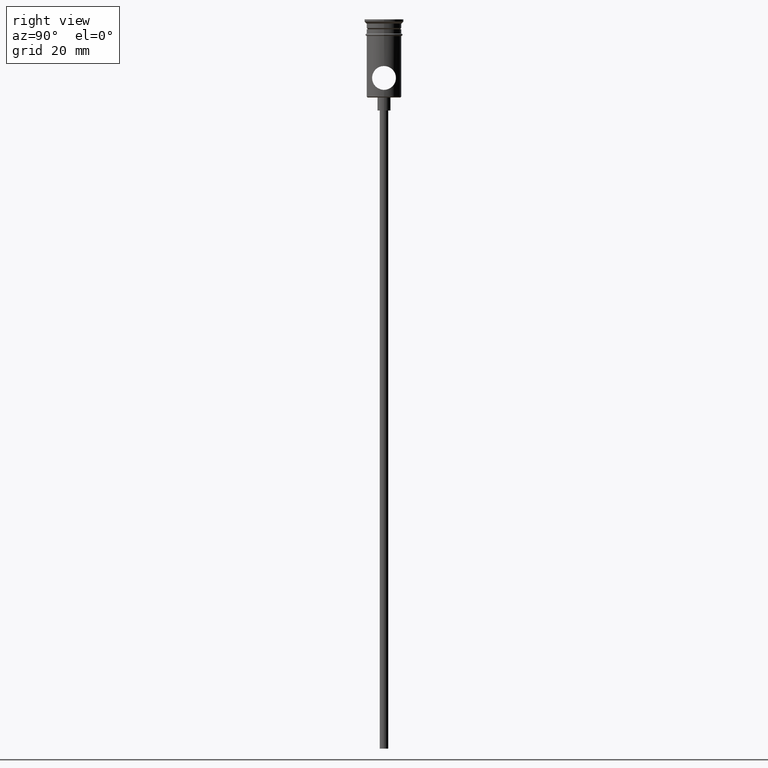
[diagram: clean part render]
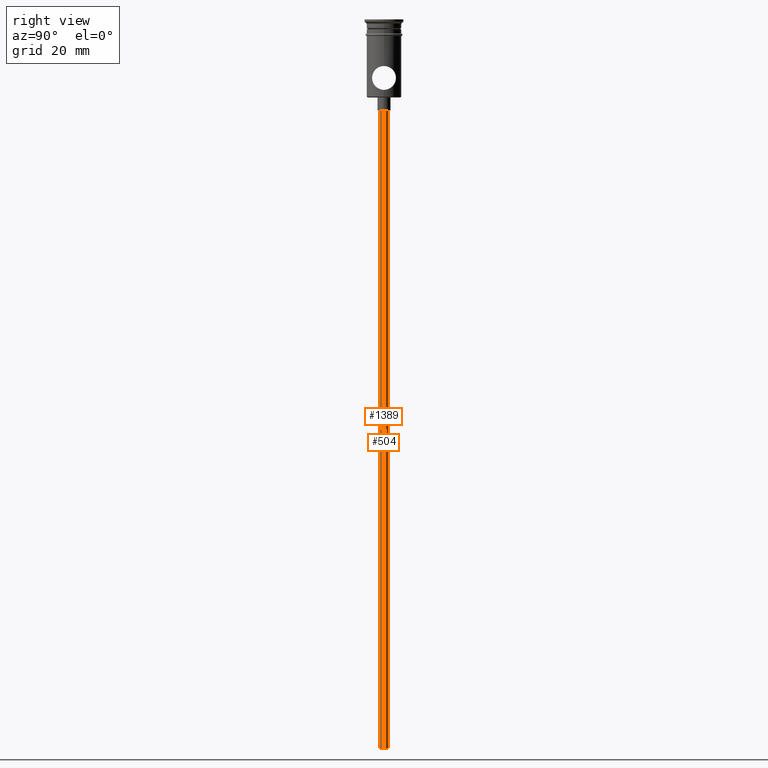
[diagram: same view with one multi-face feature highlighted, each face labeled with its STEP entity id]
A machine part, right view. The highlighted faces form ONE feature: a constant-radius fillet chain: 2 tangent blend faces with common blend radius 1 mm. The faces share edges in the B-rep.
Their STEP definitions:
[1] entity #1389 (Cylinder):
#53 = DIRECTION ( 'NONE',  ( -0.000000000000000000, -0.000000000000000000, 1.000000000000000000 ) ) ;
#72 = DIRECTION ( 'NONE',  ( 0.000000000000000000, 0.000000000000000000, -1.000000000000000000 ) ) ;
#74 = VECTOR ( 'NONE', #53, 1000.000000000000000 ) ;
#83 = ORIENTED_EDGE ( 'NONE', *, *, #494, .F. ) ;
#87 = CARTESIAN_POINT ( 'NONE',  ( 0.9999999999999997780, 0.000000000000000000, -167.9999999999999716 ) ) ;
#178 = DIRECTION ( 'NONE',  ( -0.000000000000000000, -0.000000000000000000, 1.000000000000000000 ) ) ;
#226 = CARTESIAN_POINT ( 'NONE',  ( 0.9999999999999997780, 0.000000000000000000, -20.99999999999999645 ) ) ;
#242 = AXIS2_PLACEMENT_3D ( 'NONE', #276, #1367, #709 ) ;
#276 = CARTESIAN_POINT ( 'NONE',  ( 0.000000000000000000, 0.000000000000000000, -167.9999999999999716 ) ) ;
#290 = CARTESIAN_POINT ( 'NONE',  ( -0.9999999999999997780, 1.224646799147352961E-16, -167.9999999999999716 ) ) ;
#294 = CIRCLE ( 'NONE', #475, 0.9999999999999997780 ) ;
#385 = CARTESIAN_POINT ( 'NONE',  ( 0.000000000000000000, 0.000000000000000000, -20.99999999999999645 ) ) ;
#414 = CARTESIAN_POINT ( 'NONE',  ( -0.9999999999999997780, 1.224646799147352961E-16, -20.99999999999999645 ) ) ;
#475 = AXIS2_PLACEMENT_3D ( 'NONE', #385, #72, #1245 ) ;
#494 = EDGE_CURVE ( 'NONE', #1398, #545, #1267, .T. ) ;
#500 = VECTOR ( 'NONE', #178, 1000.000000000000000 ) ;
#512 = FACE_OUTER_BOUND ( 'NONE', #880, .T. ) ;
#545 = VERTEX_POINT ( 'NONE', #414 ) ;
#567 = CIRCLE ( 'NONE', #242, 0.9999999999999997780 ) ;
#599 = CYLINDRICAL_SURFACE ( 'NONE', #738, 0.9999999999999997780 ) ;
#605 = CARTESIAN_POINT ( 'NONE',  ( -0.9999999999999997780, 1.224646799147352961E-16, -167.9999999999999716 ) ) ;
#608 = CARTESIAN_POINT ( 'NONE',  ( 0.9999999999999997780, 0.000000000000000000, -167.9999999999999716 ) ) ;
#666 = ORIENTED_EDGE ( 'NONE', *, *, #1042, .T. ) ;
#709 = DIRECTION ( 'NONE',  ( -1.000000000000000000, 0.000000000000000000, 0.000000000000000000 ) ) ;
#738 = AXIS2_PLACEMENT_3D ( 'NONE', #1158, #804, #906 ) ;
#752 = VERTEX_POINT ( 'NONE', #226 ) ;
#804 = DIRECTION ( 'NONE',  ( -0.000000000000000000, -0.000000000000000000, 1.000000000000000000 ) ) ;
#880 = EDGE_LOOP ( 'NONE', ( #83, #949, #666, #999 ) ) ;
#906 = DIRECTION ( 'NONE',  ( 1.000000000000000000, 0.000000000000000000, 0.000000000000000000 ) ) ;
#949 = ORIENTED_EDGE ( 'NONE', *, *, #979, .F. ) ;
#959 = EDGE_CURVE ( 'NONE', #752, #545, #294, .T. ) ;
#979 = EDGE_CURVE ( 'NONE', #1178, #1398, #567, .T. ) ;
#999 = ORIENTED_EDGE ( 'NONE', *, *, #959, .T. ) ;
#1042 = EDGE_CURVE ( 'NONE', #1178, #752, #1258, .T. ) ;
#1158 = CARTESIAN_POINT ( 'NONE',  ( 0.000000000000000000, 0.000000000000000000, -167.9999999999999716 ) ) ;
#1178 = VERTEX_POINT ( 'NONE', #87 ) ;
#1245 = DIRECTION ( 'NONE',  ( -1.000000000000000000, 0.000000000000000000, 0.000000000000000000 ) ) ;
#1258 = LINE ( 'NONE', #608, #500 ) ;
#1267 = LINE ( 'NONE', #290, #74 ) ;
#1367 = DIRECTION ( 'NONE',  ( 0.000000000000000000, 0.000000000000000000, -1.000000000000000000 ) ) ;
#1389 = ADVANCED_FACE ( 'NONE', ( #512 ), #599, .T. ) ;
#1398 = VERTEX_POINT ( 'NONE', #605 ) ;
[2] entity #504 (Cylinder):
#53 = DIRECTION ( 'NONE',  ( -0.000000000000000000, -0.000000000000000000, 1.000000000000000000 ) ) ;
#65 = ORIENTED_EDGE ( 'NONE', *, *, #831, .F. ) ;
#74 = VECTOR ( 'NONE', #53, 1000.000000000000000 ) ;
#87 = CARTESIAN_POINT ( 'NONE',  ( 0.9999999999999997780, 0.000000000000000000, -167.9999999999999716 ) ) ;
#129 = DIRECTION ( 'NONE',  ( -1.000000000000000000, 0.000000000000000000, 0.000000000000000000 ) ) ;
#143 = ORIENTED_EDGE ( 'NONE', *, *, #1042, .F. ) ;
#147 = ORIENTED_EDGE ( 'NONE', *, *, #1153, .T. ) ;
#178 = DIRECTION ( 'NONE',  ( -0.000000000000000000, -0.000000000000000000, 1.000000000000000000 ) ) ;
#226 = CARTESIAN_POINT ( 'NONE',  ( 0.9999999999999997780, 0.000000000000000000, -20.99999999999999645 ) ) ;
#290 = CARTESIAN_POINT ( 'NONE',  ( -0.9999999999999997780, 1.224646799147352961E-16, -167.9999999999999716 ) ) ;
#309 = CARTESIAN_POINT ( 'NONE',  ( 0.000000000000000000, 0.000000000000000000, -20.99999999999999645 ) ) ;
#349 = CARTESIAN_POINT ( 'NONE',  ( 0.000000000000000000, 0.000000000000000000, -167.9999999999999716 ) ) ;
#366 = CIRCLE ( 'NONE', #1156, 0.9999999999999997780 ) ;
#414 = CARTESIAN_POINT ( 'NONE',  ( -0.9999999999999997780, 1.224646799147352961E-16, -20.99999999999999645 ) ) ;
#421 = FACE_OUTER_BOUND ( 'NONE', #897, .T. ) ;
#474 = DIRECTION ( 'NONE',  ( 0.000000000000000000, 0.000000000000000000, -1.000000000000000000 ) ) ;
#494 = EDGE_CURVE ( 'NONE', #1398, #545, #1267, .T. ) ;
#500 = VECTOR ( 'NONE', #178, 1000.000000000000000 ) ;
#504 = ADVANCED_FACE ( 'NONE', ( #421 ), #1393, .T. ) ;
#523 = CARTESIAN_POINT ( 'NONE',  ( 0.000000000000000000, 0.000000000000000000, -167.9999999999999716 ) ) ;
#545 = VERTEX_POINT ( 'NONE', #414 ) ;
#605 = CARTESIAN_POINT ( 'NONE',  ( -0.9999999999999997780, 1.224646799147352961E-16, -167.9999999999999716 ) ) ;
#608 = CARTESIAN_POINT ( 'NONE',  ( 0.9999999999999997780, 0.000000000000000000, -167.9999999999999716 ) ) ;
#629 = AXIS2_PLACEMENT_3D ( 'NONE', #523, #937, #721 ) ;
#673 = CIRCLE ( 'NONE', #961, 0.9999999999999997780 ) ;
#721 = DIRECTION ( 'NONE',  ( 1.000000000000000000, 0.000000000000000000, 0.000000000000000000 ) ) ;
#732 = DIRECTION ( 'NONE',  ( 0.000000000000000000, 0.000000000000000000, -1.000000000000000000 ) ) ;
#752 = VERTEX_POINT ( 'NONE', #226 ) ;
#831 = EDGE_CURVE ( 'NONE', #1398, #1178, #366, .T. ) ;
#885 = ORIENTED_EDGE ( 'NONE', *, *, #494, .T. ) ;
#897 = EDGE_LOOP ( 'NONE', ( #65, #885, #147, #143 ) ) ;
#937 = DIRECTION ( 'NONE',  ( -0.000000000000000000, -0.000000000000000000, 1.000000000000000000 ) ) ;
#961 = AXIS2_PLACEMENT_3D ( 'NONE', #309, #732, #1069 ) ;
#1042 = EDGE_CURVE ( 'NONE', #1178, #752, #1258, .T. ) ;
#1069 = DIRECTION ( 'NONE',  ( -1.000000000000000000, 0.000000000000000000, 0.000000000000000000 ) ) ;
#1153 = EDGE_CURVE ( 'NONE', #545, #752, #673, .T. ) ;
#1156 = AXIS2_PLACEMENT_3D ( 'NONE', #349, #474, #129 ) ;
#1178 = VERTEX_POINT ( 'NONE', #87 ) ;
#1258 = LINE ( 'NONE', #608, #500 ) ;
#1267 = LINE ( 'NONE', #290, #74 ) ;
#1393 = CYLINDRICAL_SURFACE ( 'NONE', #629, 0.9999999999999997780 ) ;
#1398 = VERTEX_POINT ( 'NONE', #605 ) ;